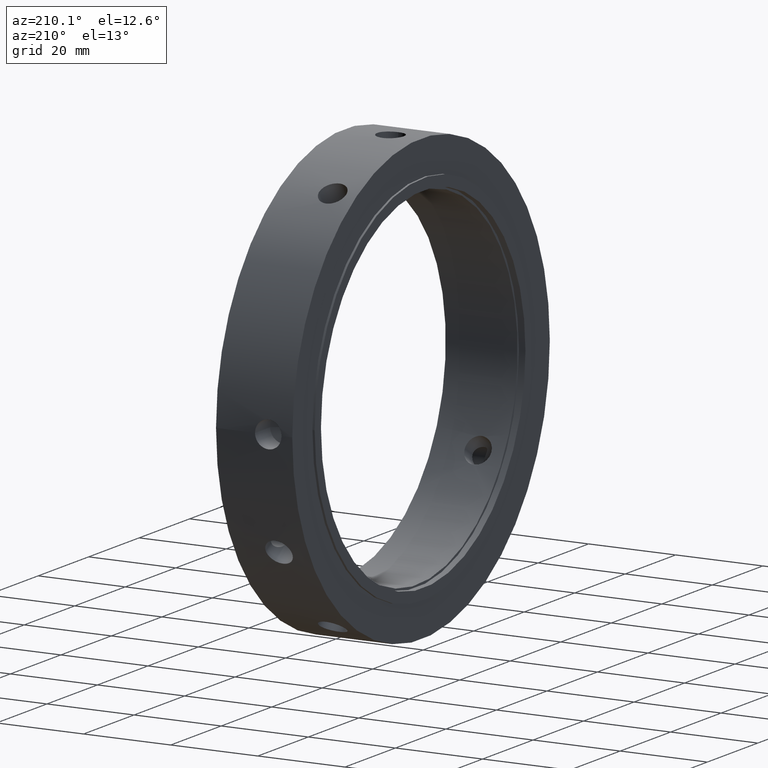
[diagram: clean part render]
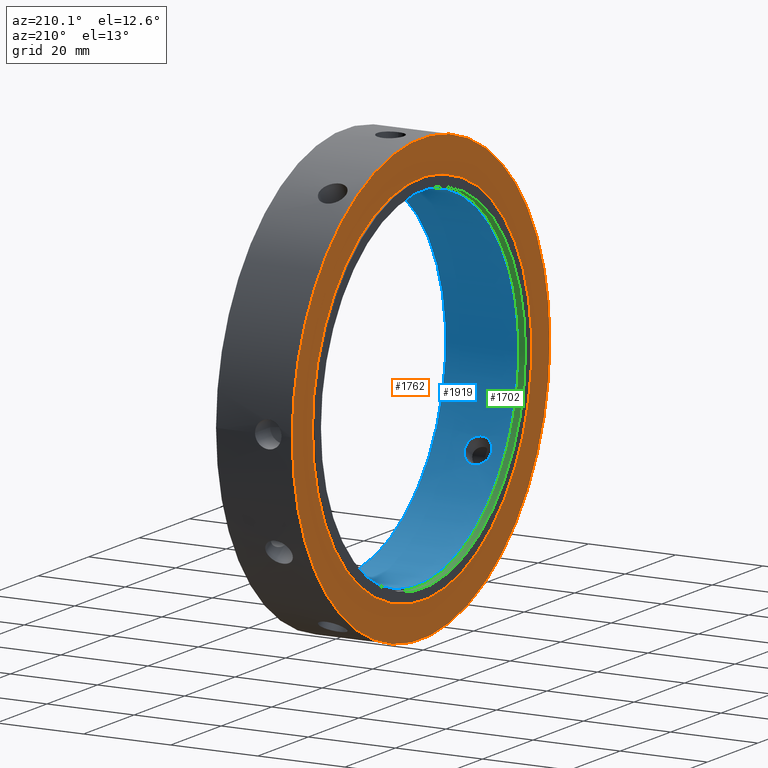
[diagram: same view with three faces highlighted in distinct colors, each labeled with its STEP entity id]
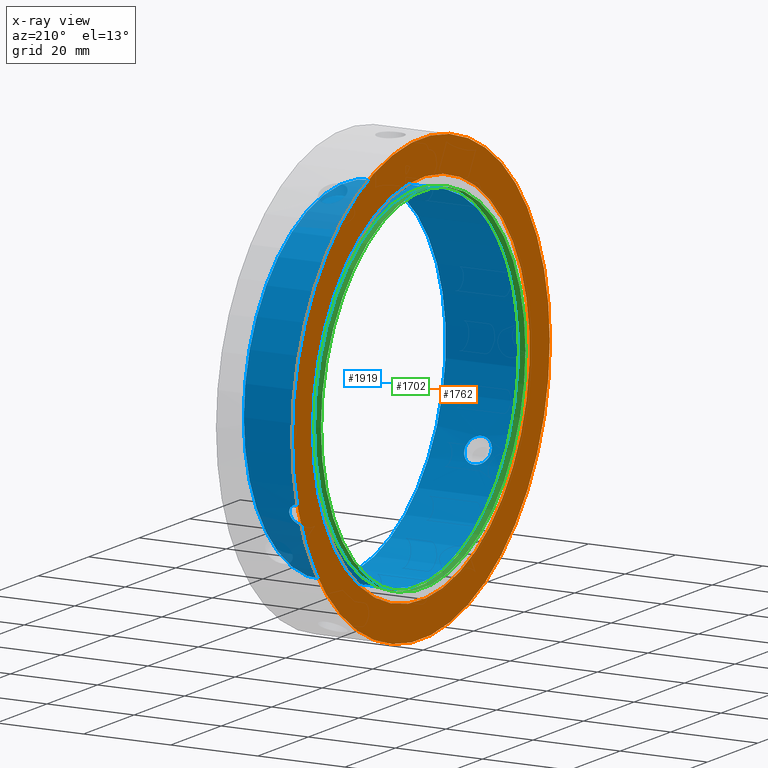
[diagram: x-ray of the same camera — body ghosted, the three highlighted faces saturated]
A machine part, auxiliary view with three faces highlighted in distinct colors.
The next image is the same camera in x-ray (body ghosted, the three faces saturated) — at least one of them is partly hidden behind the body in this view.
Their STEP definitions:

[orange] entity #1762 — the highlighted planar face has unit normal (-1, 0, 0).
#1728=CARTESIAN_POINT('',(0.499999999999989,43.0,0.0));
#1729=VERTEX_POINT('',#1728);
#1730=CARTESIAN_POINT('',(0.499999999999989,0.0,0.0));
#1731=DIRECTION('',(1.0,0.0,0.0));
#1732=DIRECTION('',(0.0,1.0,0.0));
#1733=AXIS2_PLACEMENT_3D('',#1730,#1731,#1732);
#1734=CIRCLE('',#1733,43.0);
#1735=EDGE_CURVE('',#1729,#1729,#1734,.T.);
#1743=CARTESIAN_POINT('',(0.499999999999987,47.0,0.0));
#1744=DIRECTION('',(-1.0,0.0,0.0));
#1745=DIRECTION('',(0.0,0.0,1.0));
#1746=AXIS2_PLACEMENT_3D('',#1743,#1744,#1745);
#1747=PLANE('',#1746);
#1748=CARTESIAN_POINT('',(0.499999999999985,51.000000000000007,0.0));
#1749=VERTEX_POINT('',#1748);
#1750=CARTESIAN_POINT('',(0.499999999999985,0.0,0.0));
#1751=DIRECTION('',(1.0,0.0,0.0));
#1752=DIRECTION('',(0.0,1.0,0.0));
#1753=AXIS2_PLACEMENT_3D('',#1750,#1751,#1752);
#1754=CIRCLE('',#1753,51.000000000000007);
#1755=EDGE_CURVE('',#1749,#1749,#1754,.T.);
#1756=ORIENTED_EDGE('',*,*,#1755,.F.);
#1757=EDGE_LOOP('',(#1756));
#1758=FACE_OUTER_BOUND('',#1757,.T.);
#1759=ORIENTED_EDGE('',*,*,#1735,.T.);
#1760=EDGE_LOOP('',(#1759));
#1761=FACE_BOUND('',#1760,.T.);
#1762=ADVANCED_FACE('',(#1758,#1761),#1747,.T.);

[blue] entity #1919 — the highlighted cylindrical surface (bore or boss wall) has radius 40 mm, axis along (1, 0, 0).
#1299=CARTESIAN_POINT('',(7.499999999999987,36.065166835150052,-17.300397138585957));
#1300=VERTEX_POINT('',#1299);
#1301=CARTESIAN_POINT('',(7.499999999999988,36.065166835150052,-17.300397138585939));
#1302=CARTESIAN_POINT('',(7.883124587051521,36.065166835150052,-17.300397138585939));
#1303=CARTESIAN_POINT('',(8.291684444538275,36.032140967080196,-17.369777391939369));
#1304=CARTESIAN_POINT('',(9.043097288621944,35.895525106292453,-17.650371854421618));
#1305=CARTESIAN_POINT('',(9.385962933428102,35.791663551065525,-17.861419856885838));
#1306=CARTESIAN_POINT('',(9.92738812155322,35.546268765533206,-18.344925067621183));
#1307=CARTESIAN_POINT('',(10.162092070442686,35.388309043125716,-18.649634282923106));
#1308=CARTESIAN_POINT('',(10.473402119368338,35.031602272782962,-19.31134687219927));
#1309=CARTESIAN_POINT('',(10.549999999999988,34.832578225358908,-19.668204755060987));
#1310=CARTESIAN_POINT('',(10.549999999999983,34.449454077396155,-20.331795244939023));
#1311=CARTESIAN_POINT('',(10.473402119368336,34.239918109009196,-20.682584067403106));
#1312=CARTESIAN_POINT('',(10.162092070442682,33.845211581863445,-21.322357486859914));
#1313=CARTESIAN_POINT('',(9.927388121553216,33.6603055218485,-21.611509226890497));
#1314=CARTESIAN_POINT('',(9.385962933428099,33.364275119255701,-22.065779950485393));
#1315=CARTESIAN_POINT('',(9.04309728862194,33.233432965317185,-22.261250697020579));
#1316=CARTESIAN_POINT('',(8.291684444538273,33.058738963040184,-22.519860734263766));
#1317=CARTESIAN_POINT('',(7.88312458705152,33.015166835150033,-22.583152101671011));
#1318=CARTESIAN_POINT('',(7.116875412948454,33.015166835150033,-22.583152101671011));
#1319=CARTESIAN_POINT('',(6.7083155554617,33.058738963040192,-22.519860734263769));
#1320=CARTESIAN_POINT('',(5.956902711378035,33.233432965317192,-22.261250697020586));
#1321=CARTESIAN_POINT('',(5.614037066571875,33.364275119255701,-22.065779950485389));
#1322=CARTESIAN_POINT('',(5.072611878446757,33.6603055218485,-21.611509226890497));
#1323=CARTESIAN_POINT('',(4.837907929557291,33.845211581863445,-21.322357486859914));
#1324=CARTESIAN_POINT('',(4.526597880631639,34.239918109009196,-20.682584067403106));
#1325=CARTESIAN_POINT('',(4.449999999999989,34.449454077396155,-20.331795244939023));
#1326=CARTESIAN_POINT('',(4.449999999999986,34.832578225358908,-19.668204755060987));
#1327=CARTESIAN_POINT('',(4.526597880631637,35.031602272782962,-19.31134687219927));
#1328=CARTESIAN_POINT('',(4.837907929557289,35.388309043125723,-18.649634282923106));
#1329=CARTESIAN_POINT('',(5.072611878446755,35.546268765533206,-18.344925067621183));
#1330=CARTESIAN_POINT('',(5.614037066571871,35.791663551065525,-17.861419856885838));
#1331=CARTESIAN_POINT('',(5.956902711378031,35.895525106292453,-17.650371854421621));
#1332=CARTESIAN_POINT('',(6.708315555461697,36.032140967080196,-17.369777391939369));
#1333=CARTESIAN_POINT('',(7.116875412948449,36.065166835150052,-17.300397138585936));
#1334=CARTESIAN_POINT('',(7.499999999999984,36.065166835150052,-17.300397138585936));
#1335=B_SPLINE_CURVE_WITH_KNOTS('',3,(#1301,#1302,#1303,#1304,#1305,#1306,#1307,#1308,#1309,#1310,#1311,#1312,#1313,#1314,#1315,#1316,#1317,#1318,#1319,#1320,#1321,#1322,#1323,#1324,#1325,#1326,#1327,#1328,#1329,#1330,#1331,#1332,#1333,#1334),.UNSPECIFIED.,.T.,.U.,(4,2,2,2,2,2,2,2,2,2,2,2,2,2,2,2,4),(0.0,0.11493737611546,0.22987475223092,0.344811996619748,0.459749241008576,0.574686485397403,0.689623729786231,0.804561105901691,0.919498482017151,1.034435858132611,1.149373234248071,1.264310478636899,1.379247723025726,1.494184967414554,1.609122211803382,1.724059587918842,1.838996964034302),.UNSPECIFIED.);
#1336=EDGE_CURVE('',#1300,#1300,#1335,.T.);
#1456=CARTESIAN_POINT('',(7.499999999999987,-33.015166835150069,-22.583152101671004));
#1457=VERTEX_POINT('',#1456);
#1458=CARTESIAN_POINT('',(7.499999999999987,-33.015166835150062,-22.583152101671004));
#1459=CARTESIAN_POINT('',(7.88312458705152,-33.015166835150062,-22.583152101671004));
#1460=CARTESIAN_POINT('',(8.291684444538277,-33.058738963040206,-22.519860734263752));
#1461=CARTESIAN_POINT('',(9.043097288621944,-33.233432965317206,-22.261250697020568));
#1462=CARTESIAN_POINT('',(9.3859629334281,-33.364275119255716,-22.065779950485375));
#1463=CARTESIAN_POINT('',(9.927388121553216,-33.660305521848514,-21.61150922689048));
#1464=CARTESIAN_POINT('',(10.162092070442682,-33.845211581863452,-21.322357486859897));
#1465=CARTESIAN_POINT('',(10.473402119368336,-34.23991810900921,-20.682584067403091));
#1466=CARTESIAN_POINT('',(10.549999999999983,-34.449454077396162,-20.331795244939002));
#1467=CARTESIAN_POINT('',(10.549999999999988,-34.832578225358922,-19.668204755060973));
#1468=CARTESIAN_POINT('',(10.473402119368341,-35.031602272782976,-19.311346872199259));
#1469=CARTESIAN_POINT('',(10.162092070442688,-35.38830904312573,-18.649634282923092));
#1470=CARTESIAN_POINT('',(9.927388121553218,-35.546268765533213,-18.344925067621173));
#1471=CARTESIAN_POINT('',(9.385962933428102,-35.791663551065533,-17.861419856885824));
#1472=CARTESIAN_POINT('',(9.043097288621944,-35.89552510629246,-17.650371854421604));
#1473=CARTESIAN_POINT('',(8.291684444538275,-36.032140967080203,-17.369777391939355));
#1474=CARTESIAN_POINT('',(7.88312458705152,-36.065166835150066,-17.300397138585922));
#1475=CARTESIAN_POINT('',(7.116875412948454,-36.065166835150066,-17.300397138585922));
#1476=CARTESIAN_POINT('',(6.708315555461698,-36.032140967080203,-17.369777391939355));
#1477=CARTESIAN_POINT('',(5.956902711378031,-35.89552510629246,-17.650371854421604));
#1478=CARTESIAN_POINT('',(5.614037066571871,-35.791663551065533,-17.861419856885824));
#1479=CARTESIAN_POINT('',(5.072611878446756,-35.546268765533213,-18.344925067621173));
#1480=CARTESIAN_POINT('',(4.837907929557287,-35.38830904312573,-18.649634282923092));
#1481=CARTESIAN_POINT('',(4.526597880631635,-35.031602272782976,-19.311346872199259));
#1482=CARTESIAN_POINT('',(4.449999999999986,-34.832578225358922,-19.668204755060973));
#1483=CARTESIAN_POINT('',(4.449999999999988,-34.449454077396162,-20.331795244939002));
#1484=CARTESIAN_POINT('',(4.526597880631637,-34.23991810900921,-20.682584067403088));
#1485=CARTESIAN_POINT('',(4.837907929557292,-33.845211581863452,-21.3223574868599));
#1486=CARTESIAN_POINT('',(5.072611878446756,-33.660305521848514,-21.61150922689048));
#1487=CARTESIAN_POINT('',(5.614037066571875,-33.364275119255716,-22.065779950485375));
#1488=CARTESIAN_POINT('',(5.956902711378032,-33.233432965317199,-22.261250697020564));
#1489=CARTESIAN_POINT('',(6.708315555461697,-33.058738963040199,-22.519860734263748));
#1490=CARTESIAN_POINT('',(7.116875412948454,-33.015166835150062,-22.583152101671004));
#1491=CARTESIAN_POINT('',(7.499999999999987,-33.015166835150062,-22.583152101671004));
#1492=B_SPLINE_CURVE_WITH_KNOTS('',3,(#1458,#1459,#1460,#1461,#1462,#1463,#1464,#1465,#1466,#1467,#1468,#1469,#1470,#1471,#1472,#1473,#1474,#1475,#1476,#1477,#1478,#1479,#1480,#1481,#1482,#1483,#1484,#1485,#1486,#1487,#1488,#1489,#1490,#1491),.UNSPECIFIED.,.T.,.U.,(4,2,2,2,2,2,2,2,2,2,2,2,2,2,2,2,4),(0.0,0.11493737611546,0.22987475223092,0.344811996619748,0.459749241008575,0.574686485397403,0.68962372978623,0.80456110590169,0.919498482017151,1.034435858132611,1.149373234248071,1.264310478636899,1.379247723025726,1.494184967414554,1.609122211803381,1.724059587918841,1.838996964034301),.UNSPECIFIED.);
#1493=EDGE_CURVE('',#1457,#1457,#1492,.T.);
#1613=CARTESIAN_POINT('',(7.499999999999987,-3.05,39.88354924025694));
#1614=VERTEX_POINT('',#1613);
#1615=CARTESIAN_POINT('',(7.499999999999987,-3.049999999999999,39.88354924025694));
#1616=CARTESIAN_POINT('',(7.88312458705152,-3.049999999999999,39.88354924025694));
#1617=CARTESIAN_POINT('',(8.291684444538275,-2.973402004039998,39.889638126203124));
#1618=CARTESIAN_POINT('',(9.043097288621942,-2.66209214097526,39.911622551442186));
#1619=CARTESIAN_POINT('',(9.385962933428102,-2.427388431809825,39.927199807371224));
#1620=CARTESIAN_POINT('',(9.92738812155322,-1.885963243684707,39.956434294511673));
#1621=CARTESIAN_POINT('',(10.162092070442682,-1.543097461262278,39.971991769783017));
#1622=CARTESIAN_POINT('',(10.473402119368336,-0.791684163773763,39.993930939602365));
#1623=CARTESIAN_POINT('',(10.549999999999986,-0.383124147962759,40.0));
#1624=CARTESIAN_POINT('',(10.549999999999986,0.383124147962759,40.0));
#1625=CARTESIAN_POINT('',(10.473402119368336,0.791684163773763,39.993930939602365));
#1626=CARTESIAN_POINT('',(10.162092070442682,1.543097461262278,39.971991769783017));
#1627=CARTESIAN_POINT('',(9.92738812155322,1.885963243684707,39.956434294511673));
#1628=CARTESIAN_POINT('',(9.385962933428102,2.427388431809825,39.927199807371224));
#1629=CARTESIAN_POINT('',(9.043097288621942,2.66209214097526,39.911622551442186));
#1630=CARTESIAN_POINT('',(8.291684444538275,2.973402004039998,39.889638126203124));
#1631=CARTESIAN_POINT('',(7.88312458705152,3.05,39.88354924025694));
#1632=CARTESIAN_POINT('',(7.116875412948454,3.05,39.88354924025694));
#1633=CARTESIAN_POINT('',(6.708315555461698,2.973402004039998,39.889638126203124));
#1634=CARTESIAN_POINT('',(5.956902711378032,2.66209214097526,39.911622551442186));
#1635=CARTESIAN_POINT('',(5.614037066571873,2.427388431809825,39.927199807371224));
#1636=CARTESIAN_POINT('',(5.072611878446756,1.885963243684708,39.956434294511673));
#1637=CARTESIAN_POINT('',(4.837907929557291,1.543097461262279,39.971991769783017));
#1638=CARTESIAN_POINT('',(4.526597880631637,0.791684163773764,39.993930939602365));
#1639=CARTESIAN_POINT('',(4.449999999999987,0.38312414796276,40.0));
#1640=CARTESIAN_POINT('',(4.449999999999987,-0.383124147962758,40.0));
#1641=CARTESIAN_POINT('',(4.526597880631637,-0.791684163773762,39.993930939602365));
#1642=CARTESIAN_POINT('',(4.837907929557289,-1.543097461262276,39.971991769783017));
#1643=CARTESIAN_POINT('',(5.072611878446754,-1.885963243684707,39.956434294511673));
#1644=CARTESIAN_POINT('',(5.614037066571873,-2.427388431809825,39.927199807371224));
#1645=CARTESIAN_POINT('',(5.956902711378032,-2.66209214097526,39.911622551442186));
#1646=CARTESIAN_POINT('',(6.708315555461697,-2.973402004039997,39.889638126203124));
#1647=CARTESIAN_POINT('',(7.116875412948454,-3.05,39.88354924025694));
#1648=CARTESIAN_POINT('',(7.499999999999987,-3.05,39.88354924025694));
#1649=B_SPLINE_CURVE_WITH_KNOTS('',3,(#1615,#1616,#1617,#1618,#1619,#1620,#1621,#1622,#1623,#1624,#1625,#1626,#1627,#1628,#1629,#1630,#1631,#1632,#1633,#1634,#1635,#1636,#1637,#1638,#1639,#1640,#1641,#1642,#1643,#1644,#1645,#1646,#1647,#1648),.UNSPECIFIED.,.T.,.U.,(4,2,2,2,2,2,2,2,2,2,2,2,2,2,2,2,4),(0.0,0.11493737611546,0.22987475223092,0.344811996619748,0.459749241008576,0.574686485397403,0.689623729786231,0.804561105901691,0.919498482017151,1.034435858132611,1.149373234248071,1.264310478636899,1.379247723025727,1.494184967414554,1.609122211803382,1.724059587918843,1.838996964034303),.UNSPECIFIED.);
#1650=EDGE_CURVE('',#1614,#1614,#1649,.T.);
#1671=CARTESIAN_POINT('',(1.499999999999988,40.0,0.0));
#1672=VERTEX_POINT('',#1671);
#1673=CARTESIAN_POINT('',(1.499999999999988,0.0,0.0));
#1674=DIRECTION('',(1.0,0.0,0.0));
#1675=DIRECTION('',(0.0,1.0,0.0));
#1676=AXIS2_PLACEMENT_3D('',#1673,#1674,#1675);
#1677=CIRCLE('',#1676,40.0);
#1678=EDGE_CURVE('',#1672,#1672,#1677,.T.);
#1887=CARTESIAN_POINT('',(17.999999999999993,40.0,0.0));
#1888=VERTEX_POINT('',#1887);
#1889=CARTESIAN_POINT('',(17.999999999999993,0.0,0.0));
#1890=DIRECTION('',(1.0,0.0,0.0));
#1891=DIRECTION('',(0.0,1.0,0.0));
#1892=AXIS2_PLACEMENT_3D('',#1889,#1890,#1891);
#1893=CIRCLE('',#1892,40.0);
#1894=EDGE_CURVE('',#1888,#1888,#1893,.T.);
#1899=CARTESIAN_POINT('',(9.749999999999989,0.0,0.0));
#1900=DIRECTION('',(1.0,0.0,0.0));
#1901=DIRECTION('',(0.0,1.0,0.0));
#1902=AXIS2_PLACEMENT_3D('',#1899,#1900,#1901);
#1903=CYLINDRICAL_SURFACE('',#1902,40.0);
#1904=ORIENTED_EDGE('',*,*,#1678,.F.);
#1905=EDGE_LOOP('',(#1904));
#1906=FACE_OUTER_BOUND('',#1905,.T.);
#1907=ORIENTED_EDGE('',*,*,#1336,.T.);
#1908=EDGE_LOOP('',(#1907));
#1909=FACE_BOUND('',#1908,.T.);
#1910=ORIENTED_EDGE('',*,*,#1493,.T.);
#1911=EDGE_LOOP('',(#1910));
#1912=FACE_BOUND('',#1911,.T.);
#1913=ORIENTED_EDGE('',*,*,#1650,.T.);
#1914=EDGE_LOOP('',(#1913));
#1915=FACE_BOUND('',#1914,.T.);
#1916=ORIENTED_EDGE('',*,*,#1894,.T.);
#1917=EDGE_LOOP('',(#1916));
#1918=FACE_BOUND('',#1917,.T.);
#1919=ADVANCED_FACE('',(#1906,#1909,#1912,#1915,#1918),#1903,.F.);

[green] entity #1702 — the highlighted cylindrical surface (bore or boss wall) has radius 40.5 mm, axis along (1, 0, 0).
#1660=CARTESIAN_POINT('',(1.499999999999989,40.5,0.0));
#1661=VERTEX_POINT('',#1660);
#1662=CARTESIAN_POINT('',(1.499999999999989,0.0,0.0));
#1663=DIRECTION('',(1.0,0.0,0.0));
#1664=DIRECTION('',(0.0,1.0,0.0));
#1665=AXIS2_PLACEMENT_3D('',#1662,#1663,#1664);
#1666=CIRCLE('',#1665,40.5);
#1667=EDGE_CURVE('',#1661,#1661,#1666,.T.);
#1683=CARTESIAN_POINT('',(0.749999999999989,0.0,0.0));
#1684=DIRECTION('',(1.0,0.0,0.0));
#1685=DIRECTION('',(0.0,1.0,0.0));
#1686=AXIS2_PLACEMENT_3D('',#1683,#1684,#1685);
#1687=CYLINDRICAL_SURFACE('',#1686,40.5);
#1688=CARTESIAN_POINT('',(-1.137979E-014,40.5,0.0));
#1689=VERTEX_POINT('',#1688);
#1690=CARTESIAN_POINT('',(-1.137979E-014,0.0,0.0));
#1691=DIRECTION('',(1.0,0.0,0.0));
#1692=DIRECTION('',(0.0,1.0,0.0));
#1693=AXIS2_PLACEMENT_3D('',#1690,#1691,#1692);
#1694=CIRCLE('',#1693,40.5);
#1695=EDGE_CURVE('',#1689,#1689,#1694,.T.);
#1696=ORIENTED_EDGE('',*,*,#1695,.F.);
#1697=EDGE_LOOP('',(#1696));
#1698=FACE_OUTER_BOUND('',#1697,.T.);
#1699=ORIENTED_EDGE('',*,*,#1667,.T.);
#1700=EDGE_LOOP('',(#1699));
#1701=FACE_BOUND('',#1700,.T.);
#1702=ADVANCED_FACE('',(#1698,#1701),#1687,.F.);